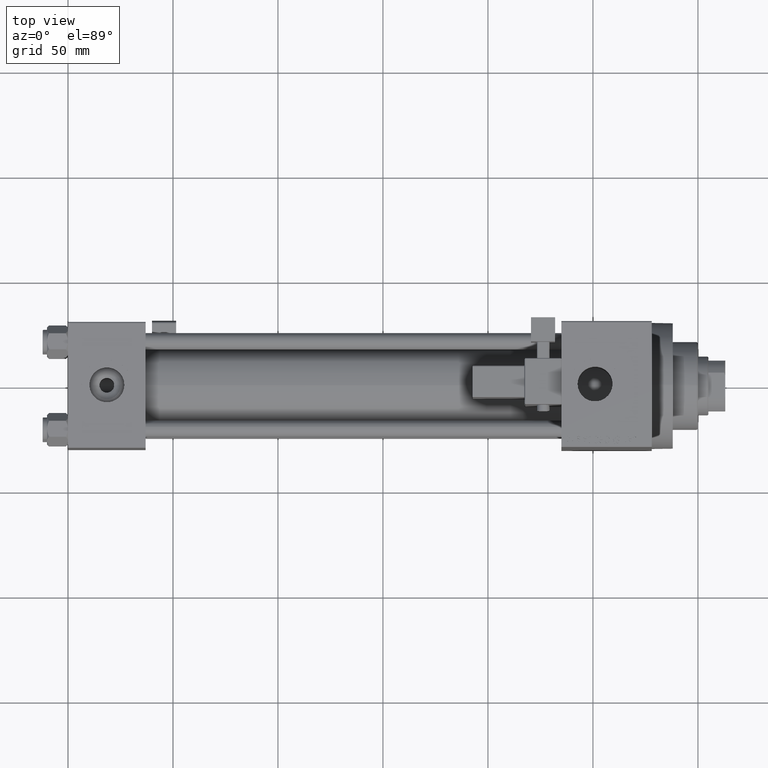
[diagram: clean part render]
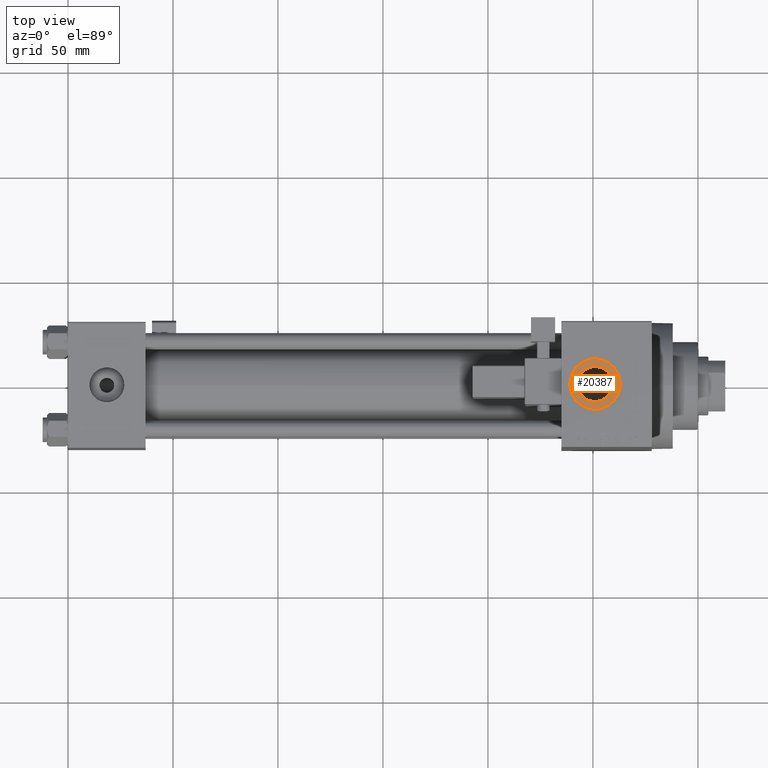
[diagram: same view with one face highlighted and labeled with its STEP entity id]
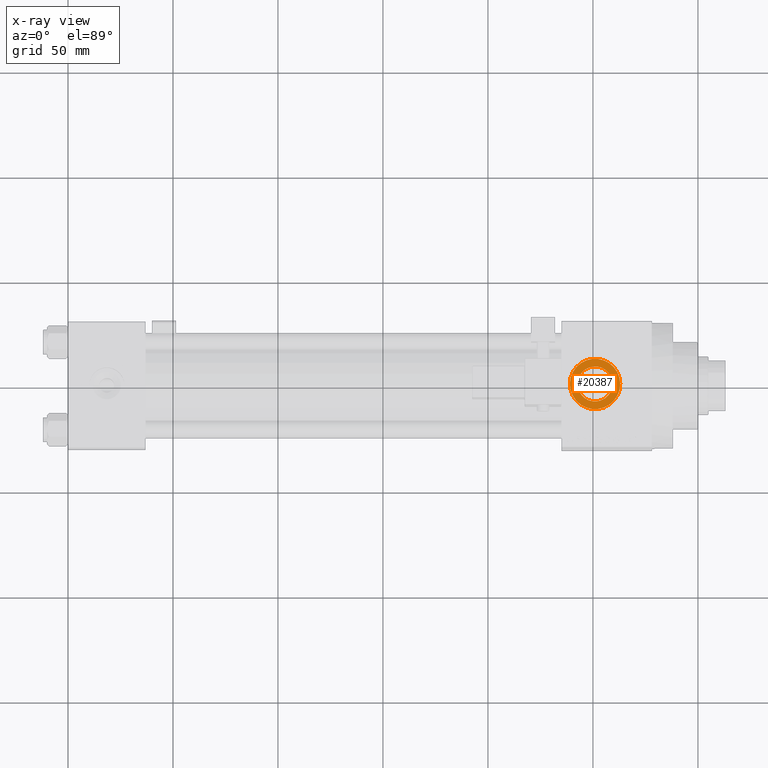
[diagram: x-ray of the same camera — body ghosted, the highlighted face saturated]
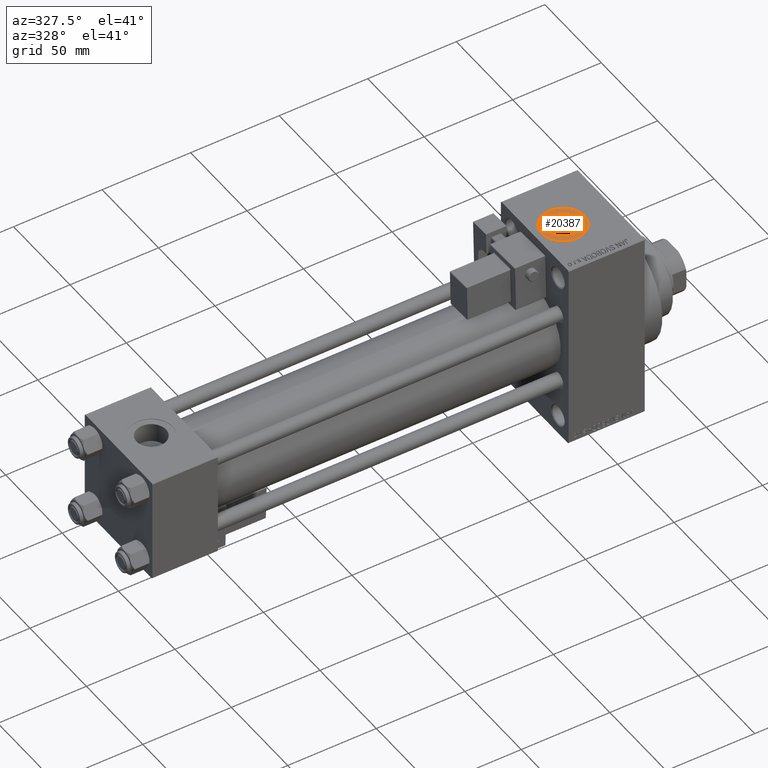
[diagram: same view with one face highlighted and labeled with its STEP entity id]
A machine part, top view. The second image highlights one B-rep face of the part: STEP entity #20387.
The next image is the same camera in x-ray: the body ghosted, the highlighted face saturated — about 0% of this face is hidden behind the body in this view.
A second angle (auxiliary view) of the same face is appended — the face is thin or edge-on in the first view.
In plain terms, the highlighted planar face has unit normal (0, 0, 1).
Its self-contained STEP definition (entity closure, byte-faithful):
#425 = AXIS2_PLACEMENT_3D ( 'NONE', #6737, #7727, #19046 ) ;
#2887 = CARTESIAN_POINT ( 'NONE',  ( 242.6699999999999591, 6.302828629382400162E-15, 54.29999999999999716 ) ) ;
#3908 = VERTEX_POINT ( 'NONE', #19128 ) ;
#4349 = EDGE_LOOP ( 'NONE', ( #33470, #24939 ) ) ;
#6737 = CARTESIAN_POINT ( 'NONE',  ( 251.0000000000000000, 6.302828629382400162E-15, 54.29999999999999716 ) ) ;
#7727 = DIRECTION ( 'NONE',  ( -0.000000000000000000, -0.000000000000000000, -1.000000000000000000 ) ) ;
#8700 = ORIENTED_EDGE ( 'NONE', *, *, #25259, .T. ) ;
#9154 = DIRECTION ( 'NONE',  ( 0.000000000000000000, 0.000000000000000000, 1.000000000000000000 ) ) ;
#10983 = ORIENTED_EDGE ( 'NONE', *, *, #23793, .T. ) ;
#12191 = CARTESIAN_POINT ( 'NONE',  ( 251.0000000000000000, 6.302828629382400162E-15, 54.29999999999999716 ) ) ;
#12921 = CARTESIAN_POINT ( 'NONE',  ( 251.0000000000000000, 6.302828629382399373E-15, 54.29999999999999716 ) ) ;
#13994 = EDGE_LOOP ( 'NONE', ( #8700, #10983 ) ) ;
#15519 = DIRECTION ( 'NONE',  ( 1.000000000000000000, 0.000000000000000000, 0.000000000000000000 ) ) ;
#19046 = DIRECTION ( 'NONE',  ( 1.000000000000000000, 0.000000000000000000, 0.000000000000000000 ) ) ;
#19128 = CARTESIAN_POINT ( 'NONE',  ( 263.0000000000000000, 6.302828629382399373E-15, 54.29999999999999716 ) ) ;
#19208 = DIRECTION ( 'NONE',  ( 1.000000000000000000, 0.000000000000000000, 0.000000000000000000 ) ) ;
#19243 = DIRECTION ( 'NONE',  ( 1.000000000000000000, 0.000000000000000000, 0.000000000000000000 ) ) ;
#20387 = ADVANCED_FACE ( 'NONE', ( #47606, #43349 ), #28026, .T. ) ;
#21234 = AXIS2_PLACEMENT_3D ( 'NONE', #12191, #27286, #19243 ) ;
#22086 = CIRCLE ( 'NONE', #425, 8.330000000000003624 ) ;
#22607 = CARTESIAN_POINT ( 'NONE',  ( 238.9999999999999716, 7.772404788359225095E-15, 54.29999999999999716 ) ) ;
#23793 = EDGE_CURVE ( 'NONE', #26499, #25654, #33315, .T. ) ;
#24939 = ORIENTED_EDGE ( 'NONE', *, *, #30363, .T. ) ;
#25259 = EDGE_CURVE ( 'NONE', #25654, #26499, #22086, .T. ) ;
#25654 = VERTEX_POINT ( 'NONE', #2887 ) ;
#26499 = VERTEX_POINT ( 'NONE', #32848 ) ;
#27286 = DIRECTION ( 'NONE',  ( -0.000000000000000000, -0.000000000000000000, -1.000000000000000000 ) ) ;
#28026 = PLANE ( 'NONE',  #34825 ) ;
#28515 = DIRECTION ( 'NONE',  ( 1.000000000000000000, 0.000000000000000000, -0.000000000000000000 ) ) ;
#30363 = EDGE_CURVE ( 'NONE', #35165, #3908, #48703, .T. ) ;
#31304 = AXIS2_PLACEMENT_3D ( 'NONE', #42154, #45422, #15519 ) ;
#32848 = CARTESIAN_POINT ( 'NONE',  ( 259.3299999999999841, 7.322959413072152024E-15, 54.29999999999999716 ) ) ;
#33315 = CIRCLE ( 'NONE', #21234, 8.330000000000003624 ) ;
#33470 = ORIENTED_EDGE ( 'NONE', *, *, #47380, .T. ) ;
#34311 = DIRECTION ( 'NONE',  ( 0.000000000000000000, 0.000000000000000000, 1.000000000000000000 ) ) ;
#34825 = AXIS2_PLACEMENT_3D ( 'NONE', #12921, #9154, #28515 ) ;
#35165 = VERTEX_POINT ( 'NONE', #22607 ) ;
#41478 = AXIS2_PLACEMENT_3D ( 'NONE', #46350, #34311, #19208 ) ;
#42154 = CARTESIAN_POINT ( 'NONE',  ( 251.0000000000000000, 6.302828629382399373E-15, 54.29999999999999716 ) ) ;
#43349 = FACE_OUTER_BOUND ( 'NONE', #4349, .T. ) ;
#45422 = DIRECTION ( 'NONE',  ( 0.000000000000000000, 0.000000000000000000, 1.000000000000000000 ) ) ;
#46350 = CARTESIAN_POINT ( 'NONE',  ( 251.0000000000000000, 6.302828629382399373E-15, 54.29999999999999716 ) ) ;
#47380 = EDGE_CURVE ( 'NONE', #3908, #35165, #48959, .T. ) ;
#47606 = FACE_BOUND ( 'NONE', #13994, .T. ) ;
#48703 = CIRCLE ( 'NONE', #41478, 12.00000000000001066 ) ;
#48959 = CIRCLE ( 'NONE', #31304, 12.00000000000001066 ) ;